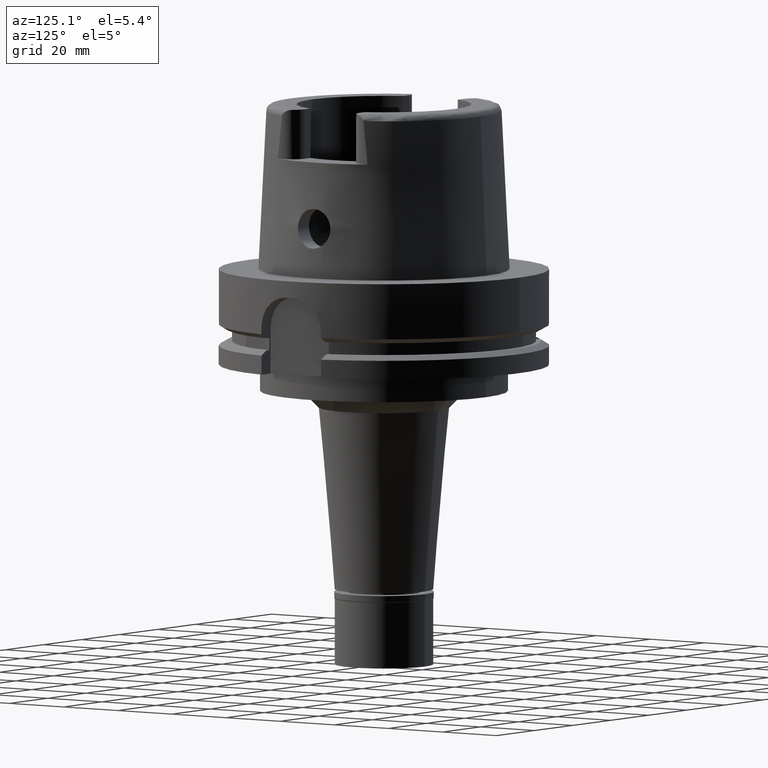
[diagram: clean part render]
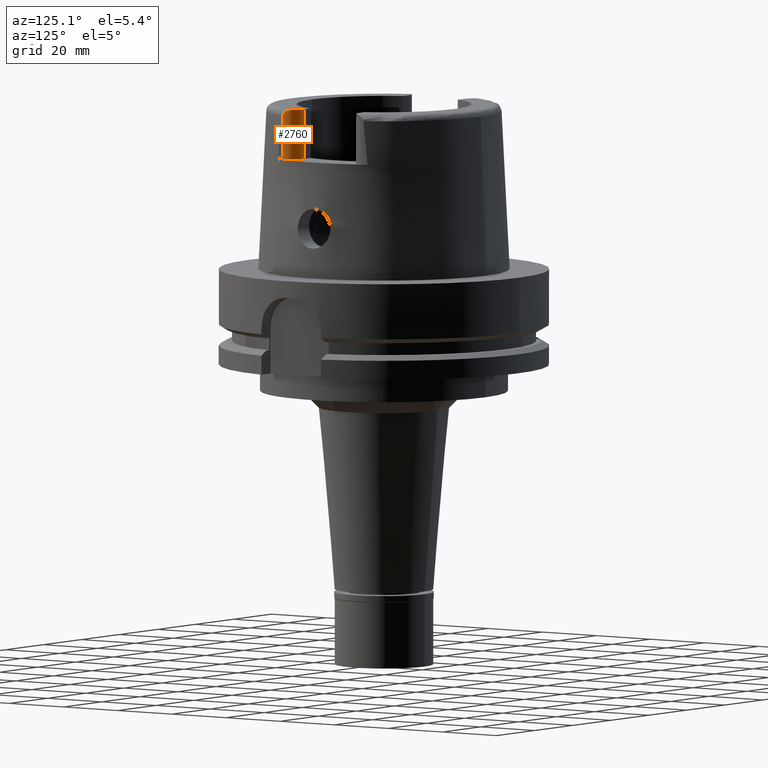
[diagram: same view with one face highlighted and labeled with its STEP entity id]
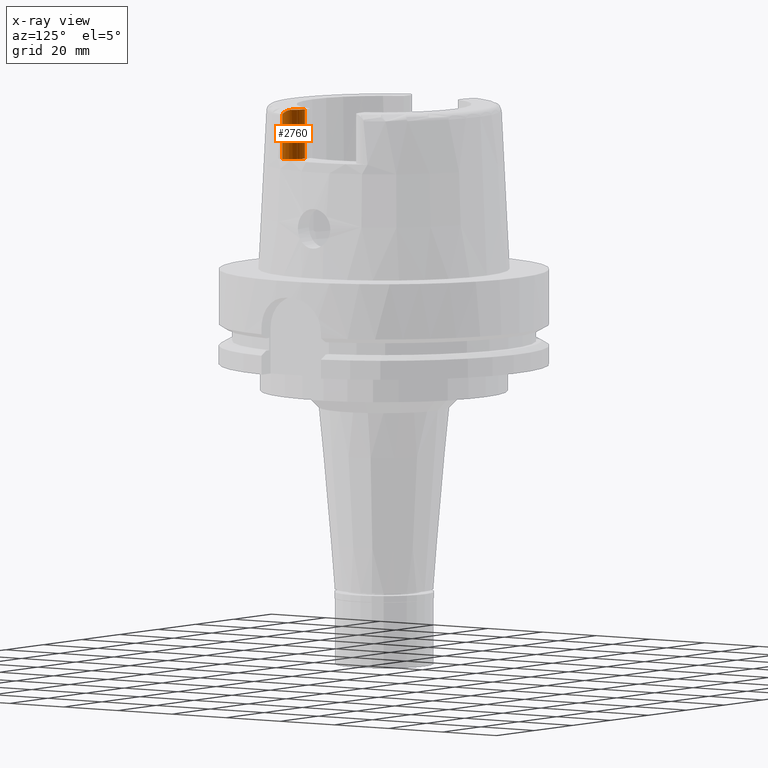
[diagram: x-ray of the same camera — body ghosted, the highlighted face saturated]
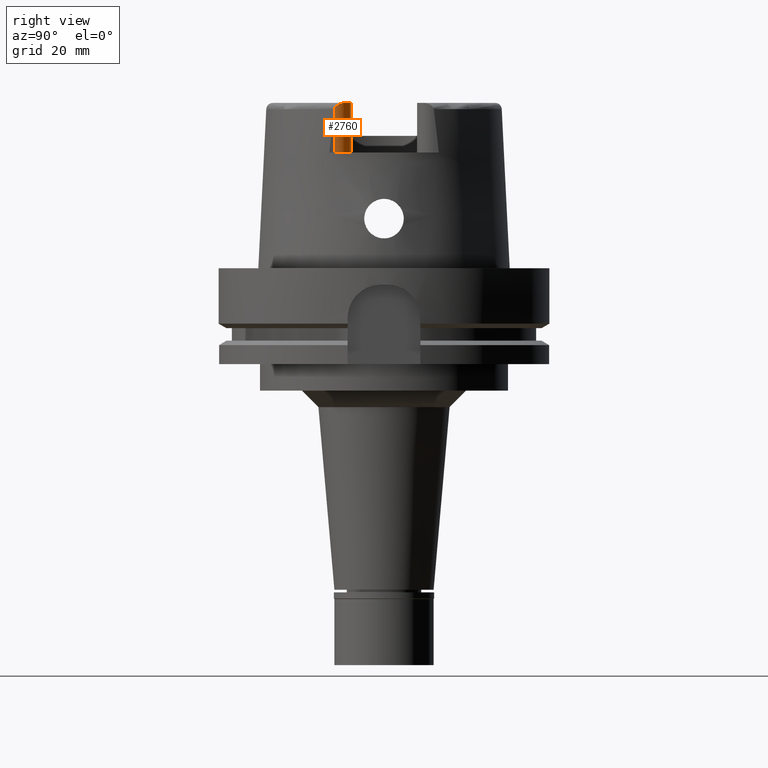
[diagram: same view with one face highlighted and labeled with its STEP entity id]
A machine part, auxiliary view. The second image highlights one B-rep face of the part: STEP entity #2760.
The next image is the same camera in x-ray: the body ghosted, the highlighted face saturated — about 0% of this face is hidden behind the body in this view.
A second angle (right view) of the same face is appended — the face is thin or edge-on in the first view.
In plain terms, the highlighted cylindrical surface (edge-blend (fillet) strip) has radius 4.88 mm, axis along (0, 0, 1).
Its self-contained STEP definition (entity closure, byte-faithful):
#50 = CARTESIAN_POINT ( 'NONE',  ( 32.22728393126124757, -14.41907615459602887, 49.04006777695534680 ) ) ;
#77 = CARTESIAN_POINT ( 'NONE',  ( 31.89387526720151200, -13.05685955377011886, 49.80497580328953688 ) ) ;
#105 = EDGE_CURVE ( 'NONE', #3519, #182, #3545, .T. ) ;
#139 = AXIS2_PLACEMENT_3D ( 'NONE', #2937, #731, #5512 ) ;
#182 = VERTEX_POINT ( 'NONE', #2910 ) ;
#240 = DIRECTION ( 'NONE',  ( 0.0000000000000000000, 0.0000000000000000000, 1.000000000000000000 ) ) ;
#301 = EDGE_CURVE ( 'NONE', #182, #1268, #1359, .T. ) ;
#315 = AXIS2_PLACEMENT_3D ( 'NONE', #3779, #3809, #3311 ) ;
#440 = CARTESIAN_POINT ( 'NONE',  ( 32.19755447542457460, -14.17407432476071882, 49.22524846111915764 ) ) ;
#467 = EDGE_CURVE ( 'NONE', #3519, #4436, #4986, .T. ) ;
#619 = EDGE_LOOP ( 'NONE', ( #3342, #3254, #2826, #2521, #791 ) ) ;
#633 = CARTESIAN_POINT ( 'NONE',  ( 32.25000000000000000, -14.89000000000000057, 48.54599893821999501 ) ) ;
#673 = EDGE_CURVE ( 'NONE', #1071, #1268, #2974, .T. ) ;
#731 = DIRECTION ( 'NONE',  ( 0.0000000000000000000, 0.0000000000000000000, -1.000000000000000000 ) ) ;
#791 = ORIENTED_EDGE ( 'NONE', *, *, #105, .T. ) ;
#839 = DIRECTION ( 'NONE',  ( -2.098162679624000168E-14, 0.0000000000000000000, 1.000000000000000000 ) ) ;
#880 = CARTESIAN_POINT ( 'NONE',  ( 32.20551049753991890, -14.23026347126031865, 49.18545733535713538 ) ) ;
#908 = CARTESIAN_POINT ( 'NONE',  ( 32.08387360053127679, -13.62661800318387684, 49.55350796612089681 ) ) ;
#937 = CARTESIAN_POINT ( 'NONE',  ( 32.25000000000000000, -14.89000000000000057, 48.54599893821999501 ) ) ;
#1056 = FACE_OUTER_BOUND ( 'NONE', #619, .T. ) ;
#1071 = VERTEX_POINT ( 'NONE', #5377 ) ;
#1097 = CARTESIAN_POINT ( 'NONE',  ( 27.36999999999999744, -14.89000000000000057, 35.00000000000000000 ) ) ;
#1264 = CARTESIAN_POINT ( 'NONE',  ( 32.22454861945254834, -14.39154083323752431, 49.06237816411320551 ) ) ;
#1268 = VERTEX_POINT ( 'NONE', #633 ) ;
#1275 = CARTESIAN_POINT ( 'NONE',  ( 32.25000000000000000, -14.89000000000000057, 35.00000000000000000 ) ) ;
#1291 = VECTOR ( 'NONE', #839, 1000.000000000000000 ) ;
#1296 = CARTESIAN_POINT ( 'NONE',  ( 32.21884211687651600, -14.33878863839485440, 49.10391319291424850 ) ) ;
#1359 = B_SPLINE_CURVE_WITH_KNOTS ( 'NONE', 3,
 ( #3019, #2619, #2567, #3917, #77, #2964, #4261, #3048, #3837, #5569, #2130, #908, #2181, #3810, #3889, #1693, #3419, #440, #880, #2593, #1296, #1264, #50, #1782, #5542, #937 ),
 .UNSPECIFIED., .F., .F.,
 ( 4, 2, 1, 1, 2, 2, 1, 1, 2, 2, 2, 2, 2, 2, 4 ),
 ( 0.0000000000000000000, 0.2499999999999754086, 0.3124999999999694134, 0.3437499999999664158, 0.3593749999999645284, 0.3749999999999626965, 0.4374999999999619749, 0.4687499999999633626, 0.4843749999999635292, 0.4999999999999636957, 0.6249999999999710232, 0.6874999999999769074, 0.7187499999999794609, 0.7499999999999820144, 1.000000000000000000 ),
 .UNSPECIFIED. ) ;
#1693 = CARTESIAN_POINT ( 'NONE',  ( 32.14578837432907932, -13.87824926397223990, 49.41635652625360819 ) ) ;
#1782 = CARTESIAN_POINT ( 'NONE',  ( 32.24707770148665276, -14.63425335696715024, 48.86116032940986997 ) ) ;
#1951 = DIRECTION ( 'NONE',  ( 0.0000000000000000000, 0.0000000000000000000, -1.000000000000000000 ) ) ;
#1974 = DIRECTION ( 'NONE',  ( 1.000000000000000000, 0.0000000000000000000, 0.0000000000000000000 ) ) ;
#2073 = CYLINDRICAL_SURFACE ( 'NONE', #315, 4.880000000000002558 ) ;
#2130 = CARTESIAN_POINT ( 'NONE',  ( 32.04958874590416684, -13.50240439777606483, 49.61648357181364588 ) ) ;
#2181 = CARTESIAN_POINT ( 'NONE',  ( 32.09754112139203386, -13.67959286563108101, 49.52545349651646944 ) ) ;
#2298 = CARTESIAN_POINT ( 'NONE',  ( 27.36999999999999744, -10.00999999999999979, 35.00000000000000000 ) ) ;
#2521 = ORIENTED_EDGE ( 'NONE', *, *, #467, .F. ) ;
#2567 = CARTESIAN_POINT ( 'NONE',  ( 31.68017213802915677, -12.57905852474517872, 49.95561949010279079 ) ) ;
#2583 = AXIS2_PLACEMENT_3D ( 'NONE', #1097, #240, #1974 ) ;
#2593 = CARTESIAN_POINT ( 'NONE',  ( 32.21572434314401789, -14.31197828323277044, 49.12446271943486664 ) ) ;
#2619 = CARTESIAN_POINT ( 'NONE',  ( 31.52483155412097560, -12.31329302598210873, 50.00000000000002132 ) ) ;
#2760 = ADVANCED_FACE ( 'NONE', ( #1056 ), #2073, .T. ) ;
#2826 = ORIENTED_EDGE ( 'NONE', *, *, #3515, .T. ) ;
#2845 = CARTESIAN_POINT ( 'NONE',  ( 27.36999999999999744, -10.00999999999999979, 50.00000000000000000 ) ) ;
#2848 = CARTESIAN_POINT ( 'NONE',  ( 27.36999999999999744, -10.00999999999999979, 50.00000000000000000 ) ) ;
#2910 = CARTESIAN_POINT ( 'NONE',  ( 31.35385269249000473, -12.07161079256999869, 50.00000000000000000 ) ) ;
#2937 = CARTESIAN_POINT ( 'NONE',  ( 27.36999999999999744, -14.89000000000000057, 50.00000000000000000 ) ) ;
#2964 = CARTESIAN_POINT ( 'NONE',  ( 31.94434951637944309, -13.18923514042350043, 49.75359960529389269 ) ) ;
#2974 = LINE ( 'NONE', #1275, #1291 ) ;
#3019 = CARTESIAN_POINT ( 'NONE',  ( 31.35385269249000473, -12.07161079256999869, 50.00000000000000000 ) ) ;
#3048 = CARTESIAN_POINT ( 'NONE',  ( 31.97845563976000349, -13.28471246767131575, 49.71400784111826709 ) ) ;
#3254 = ORIENTED_EDGE ( 'NONE', *, *, #673, .F. ) ;
#3311 = DIRECTION ( 'NONE',  ( 1.000000000000000000, 0.0000000000000000000, 0.0000000000000000000 ) ) ;
#3342 = ORIENTED_EDGE ( 'NONE', *, *, #301, .T. ) ;
#3419 = CARTESIAN_POINT ( 'NONE',  ( 32.16968869730529690, -14.00055323284945707, 49.34200598384664715 ) ) ;
#3515 = EDGE_CURVE ( 'NONE', #1071, #4436, #4384, .T. ) ;
#3519 = VERTEX_POINT ( 'NONE', #2845 ) ;
#3545 = CIRCLE ( 'NONE', #139, 4.879999999999999005 ) ;
#3779 = CARTESIAN_POINT ( 'NONE',  ( 27.36999999999999744, -14.89000000000000057, 50.00000000000000000 ) ) ;
#3809 = DIRECTION ( 'NONE',  ( 0.0000000000000000000, 0.0000000000000000000, 1.000000000000000000 ) ) ;
#3810 = CARTESIAN_POINT ( 'NONE',  ( 32.10642794143773671, -13.71484858807397522, 49.50651386693406408 ) ) ;
#3837 = CARTESIAN_POINT ( 'NONE',  ( 31.98551946997987727, -13.30515295630504902, 49.70526929451929732 ) ) ;
#3889 = CARTESIAN_POINT ( 'NONE',  ( 32.11112787875381258, -13.73398173852252313, 49.49607710462360899 ) ) ;
#3917 = CARTESIAN_POINT ( 'NONE',  ( 31.84656173672798118, -12.94545065250157556, 49.84288305759633175 ) ) ;
#4261 = CARTESIAN_POINT ( 'NONE',  ( 31.96495161975537869, -13.24645777139948066, 49.73004886301626470 ) ) ;
#4384 = CIRCLE ( 'NONE', #2583, 4.880000000000002558 ) ;
#4436 = VERTEX_POINT ( 'NONE', #2298 ) ;
#4986 = LINE ( 'NONE', #2848, #5356 ) ;
#5356 = VECTOR ( 'NONE', #1951, 1000.000000000000000 ) ;
#5377 = CARTESIAN_POINT ( 'NONE',  ( 32.25000000000000000, -14.89000000000000057, 35.00000000000000000 ) ) ;
#5512 = DIRECTION ( 'NONE',  ( 0.0000000000000000000, 1.000000000000000000, 0.0000000000000000000 ) ) ;
#5542 = CARTESIAN_POINT ( 'NONE',  ( 32.25000000000000000, -14.78364764264819797, 48.70309691825903542 ) ) ;
#5569 = CARTESIAN_POINT ( 'NONE',  ( 32.01598536356930680, -13.39501435583790823, 49.66620296517736222 ) ) ;